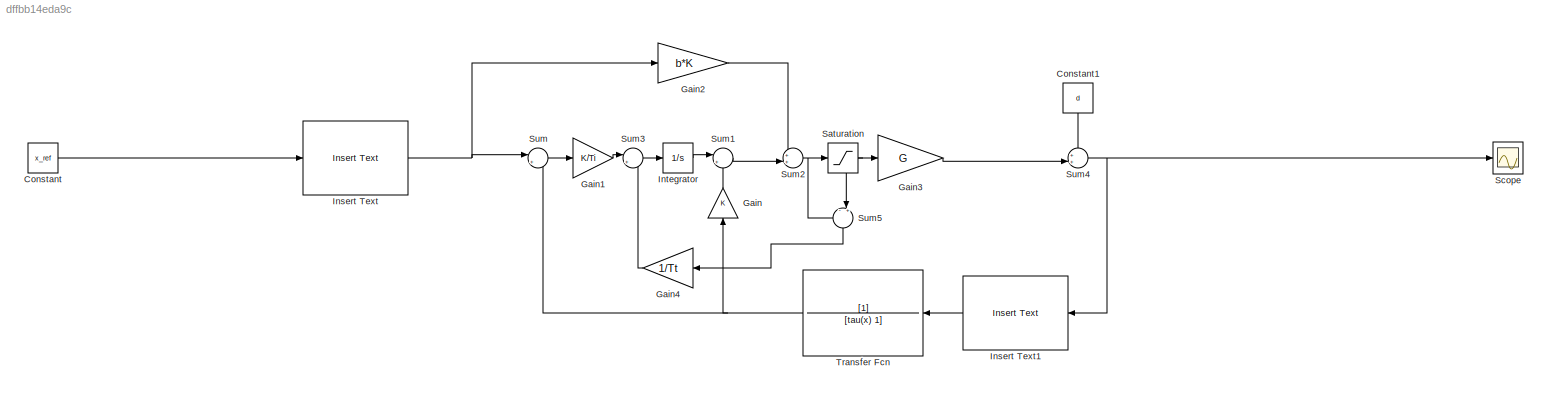
MODEL slx_dffbb14eda9c
KIND model
CONFIG AbsTol = auto
CONFIG EnableMultiTasking = off
CONFIG FixedStep = auto
CONFIG MaxStep = auto
CONFIG MinStep = auto
CONFIG RelTol = 1e-3
CONFIG SampleTimeConstraint = Unconstrained
CONFIG SolverName = VariableStepAuto
CONFIG StartTime = 0.0
CONFIG StopTime = 10.0
WORKSPACE source: mxarray member
WORKSPACE Tt = 1
WORKSPACE d = 1
BLOCK [Constant] Constant
  Value = x_ref
BLOCK [Constant] Constant1
  NameLocation = left
  Value = d
BLOCK [Gain] Gain
  Gain = K
  NameLocation = right
BLOCK [Gain] Gain1
  Gain = K/Ti
BLOCK [Gain] Gain2
  Gain = b*K
BLOCK [Gain] Gain3
  Gain = G
BLOCK [Gain] Gain4
  Gain = 1/Tt
  NameLocation = top
BLOCK [Reference] Insert Text  REF=visiontextngfix/Insert Text
  SourceBlock = visiontextngfix/Insert Text
  SourceType = Insert Text
BLOCK [Reference] Insert Text1  REF=visiontextngfix/Insert Text
  NameLocation = top
  SourceBlock = visiontextngfix/Insert Text
  SourceType = Insert Text
BLOCK [Integrator] Integrator
BLOCK [Saturate] Saturation
  LowerLimit = 0
  UpperLimit = 4095
BLOCK [Scope] Scope
  Floating = off
  NumInputPorts = 1
  ScopeSpecificationString = Simulink.scopes.TimeScopeBlockCfg('CurrentConfiguration', extmgr.ConfigurationSet(extmgr.Configuration('Core','General UI',true),extmgr.Configuration('Core','Source UI',true),extmgr.Configuration('Sources','WiredSimulink',true),extmgr.Configuration('Visuals','Time Domain',true),extmgr.Configuration('Tools','Plot Navigation',true),extmgr.Configuration('Tools','Measurements',true)),'Version','2023b'...<+1ch>
BLOCK [Sum] Sum
  Inputs = |+-
BLOCK [Sum] Sum1
  Inputs = |+-
BLOCK [Sum] Sum2
  Inputs = ++|
BLOCK [Sum] Sum3
  Inputs = |++
BLOCK [Sum] Sum4
  Inputs = ++|
BLOCK [Sum] Sum5
  Inputs = -|+
  NameLocation = left
BLOCK [TransferFcn] Transfer Fcn
  Denominator = [tau(x) 1]
  NameLocation = top
LINE Constant1:1 -> Sum4:1
LINE Constant:1 -> Insert Text:1
LINE Gain1:1 -> Sum3:1
LINE Gain2:1 -> Sum2:1
LINE Gain3:1 -> Sum4:2
LINE Gain4:1 -> Sum3:2
LINE Gain:1 -> Sum1:2
LINE Insert Text1:1 -> Transfer Fcn:1
NET Insert Text:1 -> Gain2:1, Sum:1
LINE Integrator:1 -> Sum1:1
NET Saturation:1 -> Gain3:1, Sum5:2
LINE Sum1:1 -> Sum2:2
NET Sum2:1 -> Saturation:1, Sum5:1
LINE Sum3:1 -> Integrator:1
NET Sum4:1 -> Insert Text1:1, Scope:1
LINE Sum5:1 -> Gain4:1
LINE Sum:1 -> Gain1:1
NET Transfer Fcn:1 -> Gain:1, Sum:2
note: NET lines group one-source signal fan-out (src -> all destinations, sorted); 1:1 wires keep LINE
